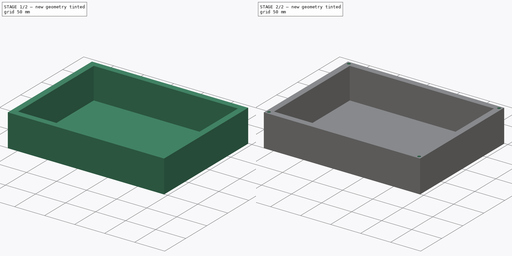
[diagram: build sequence overview — one tinted view per stage of 2, left to right]
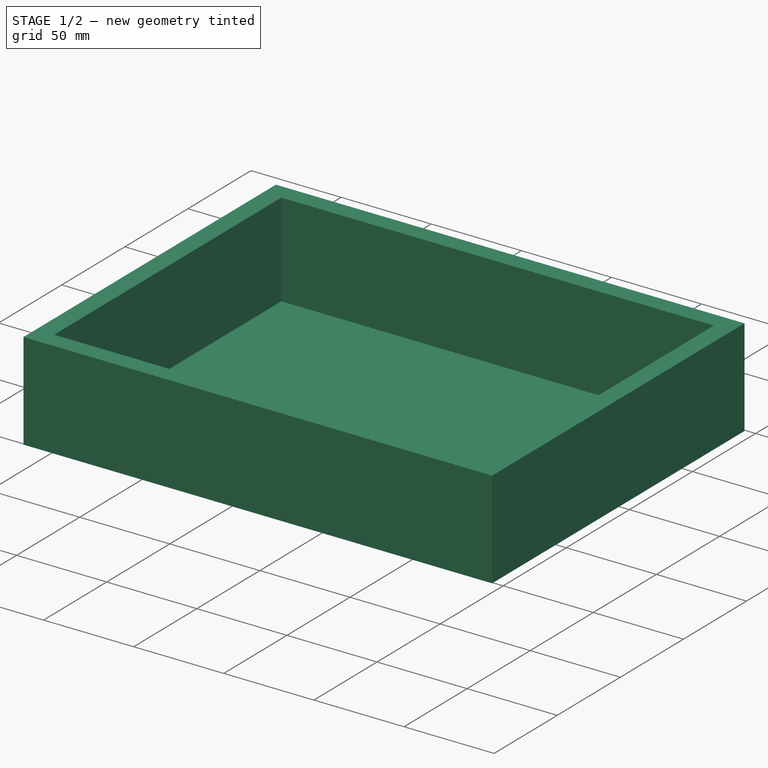
[diagram: stage 1 of 2 — iso view after this stage's code; geometry added in this stage tinted green]
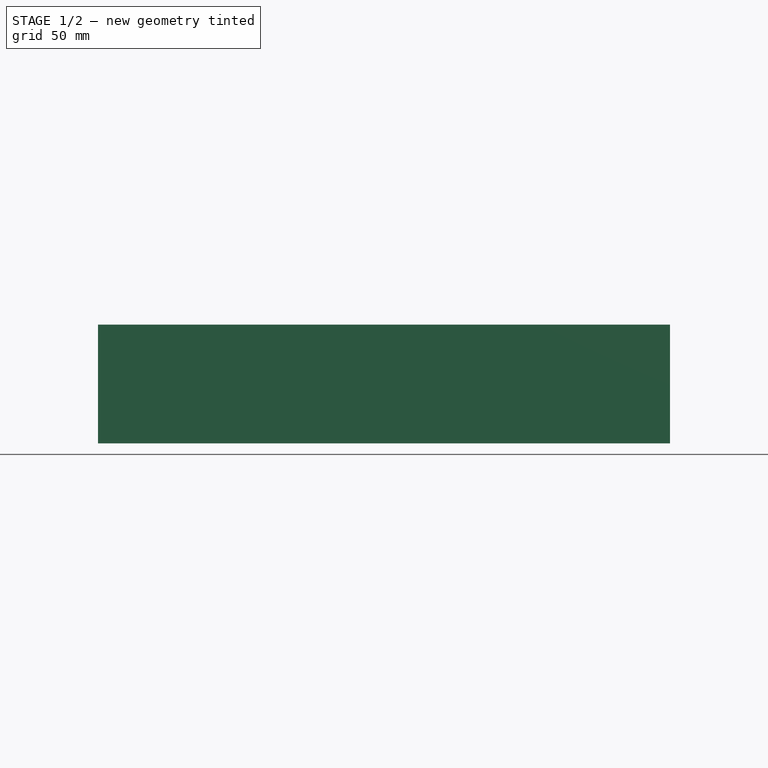
[diagram: stage 1 of 2 — front view after this stage's code; geometry added in this stage tinted green]
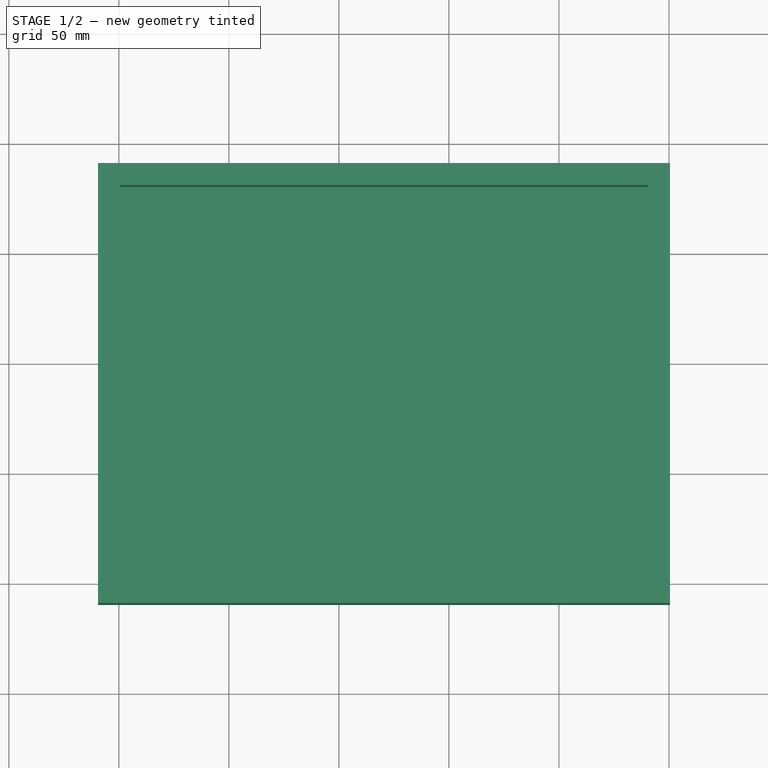
[diagram: stage 1 of 2 — top view after this stage's code; geometry added in this stage tinted green]
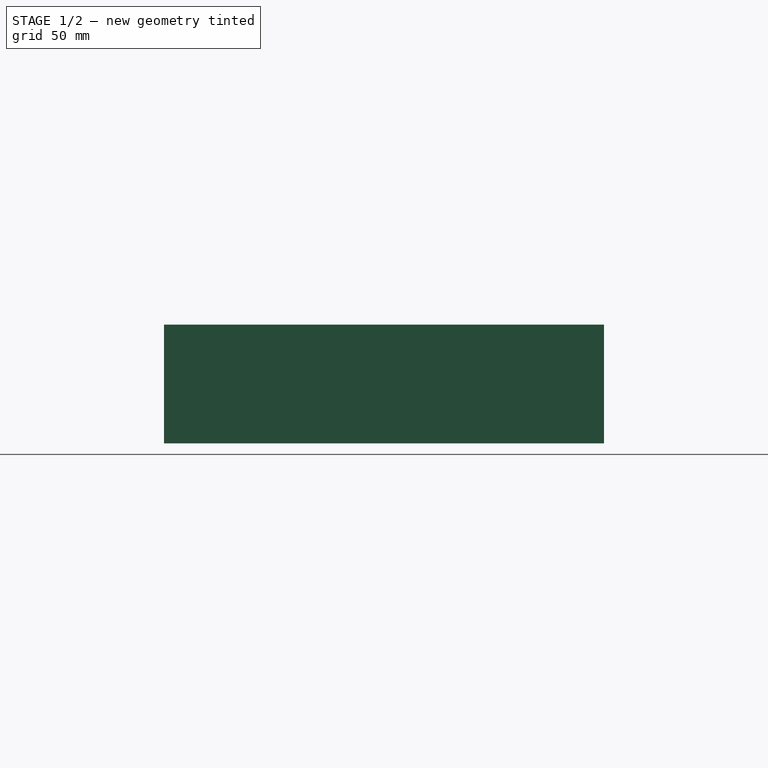
[diagram: stage 1 of 2 — right view after this stage's code; geometry added in this stage tinted green]
FCSTD DOCUMENT  (FreeCAD 1.0R39285 (Git))
Label: Main Box
License: All rights reserved
LicenseURL: https://en.wikipedia.org/wiki/All_rights_reserved
objects: Sketcher::SketchObject×3, PartDesign::Pad×2, PartDesign::Pocket×1, PartDesign::Body×1
note: 16 computed .brp shape members not serialized (recipe doc carries the construction recipe); baked Part::Feature solids carry a one-line shape summary decoded from their .brp

FEATURE [Sketcher::SketchObject] Sketch
  ArcFitTolerance = 1e-06
  AttachmentSupport = -> [XY_Plane]
  FullyConstrained = true
  MakeInternals = false
  MapMode = 5
  sketch-geometry (12):
    g0: LineSegment [constr] StartX=0 StartY=0 StartZ=0 EndX=240 EndY=0 EndZ=0
    g1: LineSegment [constr] StartX=240 StartY=0 StartZ=0 EndX=240 EndY=180 EndZ=0
    g2: LineSegment [constr] StartX=240 StartY=180 StartZ=0 EndX=0 EndY=180 EndZ=0
    g3: LineSegment [constr] StartX=0 StartY=180 StartZ=0 EndX=0 EndY=0 EndZ=0
    g4: LineSegment StartX=0.5 StartY=180.5 StartZ=0 EndX=0.5 EndY=0.5 EndZ=0
    g5: LineSegment StartX=0.5 StartY=0.5 StartZ=0 EndX=240.5 EndY=0.5 EndZ=0
    g6: LineSegment StartX=240.5 StartY=0.5 StartZ=0 EndX=240.5 EndY=180.5 EndZ=0
    g7: LineSegment StartX=240.5 StartY=180.5 StartZ=0 EndX=0.5 EndY=180.5 EndZ=0
    g8: LineSegment StartX=-9.5 StartY=190.5 StartZ=0 EndX=-9.5 EndY=-9.5 EndZ=0
    g9: LineSegment StartX=-9.5 StartY=-9.5 StartZ=0 EndX=250.5 EndY=-9.5 EndZ=0
    g10: LineSegment StartX=250.5 StartY=-9.5 StartZ=0 EndX=250.5 EndY=190.5 EndZ=0
    g11: LineSegment StartX=250.5 StartY=190.5 StartZ=0 EndX=-9.5 EndY=190.5 EndZ=0
  constraints (35):
    c: Coincident(g0,g1)
    c: Coincident(g1,g2)
    c: Coincident(g2,g3)
    c: Coincident(g3,g0)
    c: Horizontal(g0)
    c: Horizontal(g2)
    c: Vertical(g1)
    c: Vertical(g3)
    c: Distance(g1,g3) = 240
    c: Distance(g0,g2) = 180
    c: Coincident(g0,g-1)
    c: Coincident(g4,g5)
    c: Coincident(g5,g6)
    c: Coincident(g6,g7)
    c: Coincident(g7,g4)
    c: Vertical(g4)
    c: Vertical(g6)
    c: Horizontal(g5)
    c: Horizontal(g7)
    c: Distance(g3,g4) = 0.5
    c: Coincident(g8,g9)
    c: Coincident(g9,g10)
    c: Coincident(g10,g11)
    c: Coincident(g11,g8)
    c: Vertical(g8)
    c: Vertical(g10)
    c: Horizontal(g9)
    c: Horizontal(g11)
    c: Distance(g11,g7) = 10
    c: Distance(g7,g2) = 0.5
    c: Distance(g6,g1) = 0.5
    c: Distance(g5,g0) = 0.5
    c: Distance(g10,g6) = 10
    c: Distance(g9,g5) = 10
    c: Distance(g8,g4) = 10
FEATURE [PartDesign::Pad] Pad
  Direction = (0,0,1)
  Length = 52
  Length2 = 10
  Profile = -> Sketch
  ReferenceAxis = -> Sketch [N_Axis]
  Refine = true
  Suppressed = false
  Type = 0
FEATURE [Sketcher::SketchObject] Sketch001
  ArcFitTolerance = 1e-06
  AttachmentSupport = -> [XY_Plane]
  ExternalGeometry = -> [Pad]
  FullyConstrained = true
  MakeInternals = false
  MapMode = 5
  sketch-geometry (4):
    g0: LineSegment StartX=-9.5 StartY=-9.5 StartZ=0 EndX=250.5 EndY=-9.5 EndZ=0
    g1: LineSegment StartX=250.5 StartY=-9.5 StartZ=0 EndX=250.5 EndY=190.5 EndZ=0
    g2: LineSegment StartX=250.5 StartY=190.5 StartZ=0 EndX=-9.5 EndY=190.5 EndZ=0
    g3: LineSegment StartX=-9.5 StartY=190.5 StartZ=0 EndX=-9.5 EndY=-9.5 EndZ=0
  constraints (10):
    c: Coincident(g0,g1)
    c: Coincident(g1,g2)
    c: Coincident(g2,g3)
    c: Coincident(g3,g0)
    c: Horizontal(g0)
    c: Horizontal(g2)
    c: Vertical(g1)
    c: Vertical(g3)
    c: Coincident(g0,g-5)
    c: Coincident(g1,g-6)
FEATURE [PartDesign::Pad] Pad001
  BaseFeature = -> Pad
  Direction = (0,0,1)
  Length = 2
  Length2 = 10
  Profile = -> Sketch001
  ReferenceAxis = -> Sketch001 [N_Axis]
  Refine = true
  Reversed = true
  Suppressed = false
  Type = 0
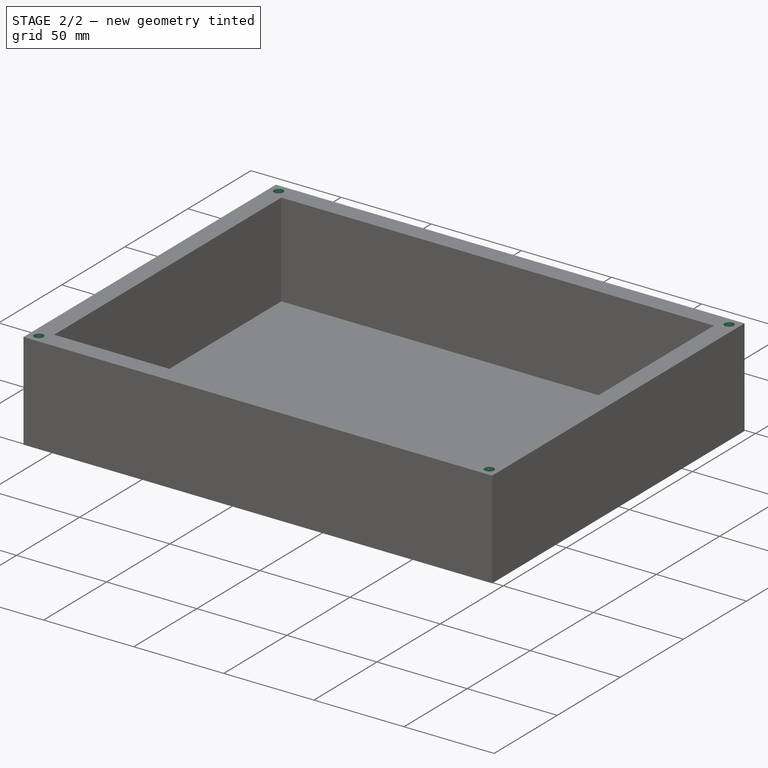
[diagram: stage 2 of 2 — iso view after this stage's code; geometry added in this stage tinted green]
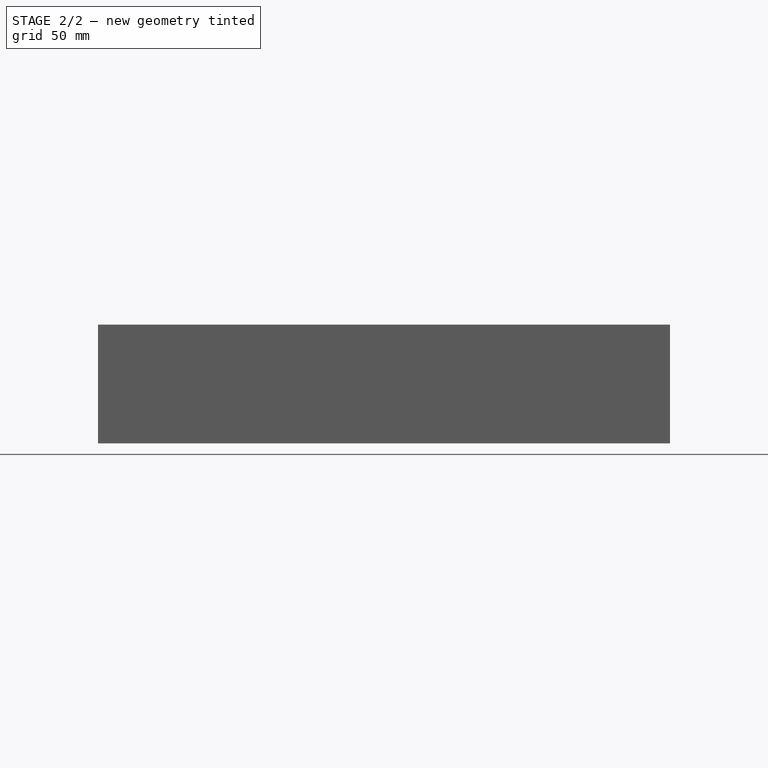
[diagram: stage 2 of 2 — front view after this stage's code; geometry added in this stage tinted green]
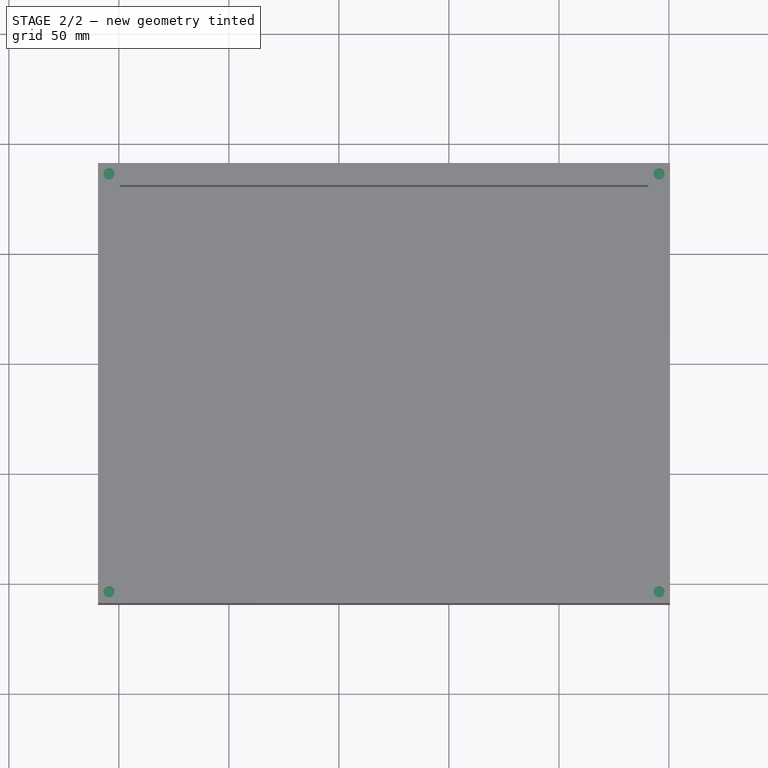
[diagram: stage 2 of 2 — top view after this stage's code; geometry added in this stage tinted green]
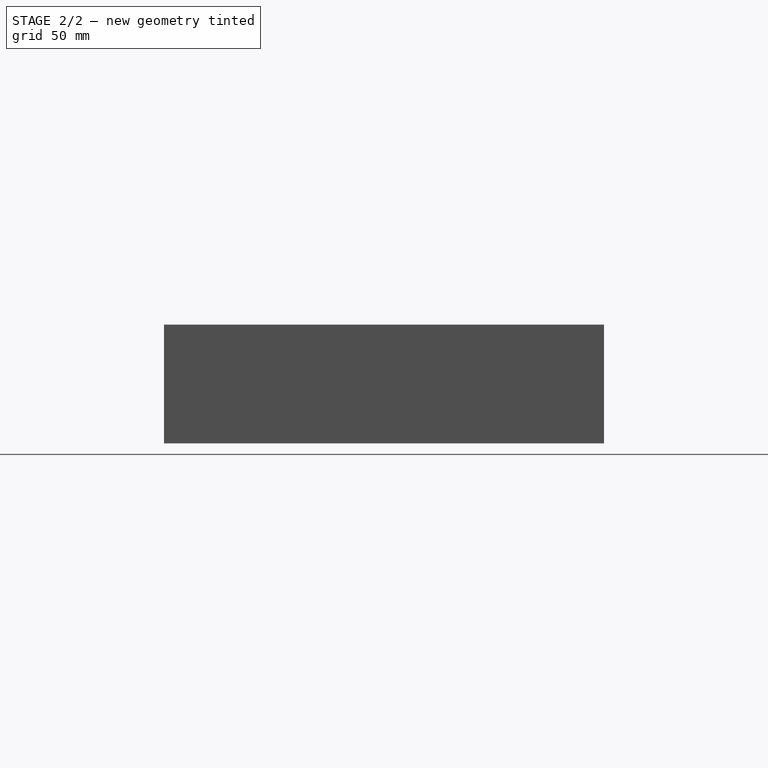
[diagram: stage 2 of 2 — right view after this stage's code; geometry added in this stage tinted green]
FEATURE [Sketcher::SketchObject] Sketch002
  ArcFitTolerance = 1e-06
  AttachmentSupport = -> [Pad001]
  ExternalGeometry = -> [Pad001]
  FullyConstrained = true
  MakeInternals = false
  MapMode = 5
  Placement = pos=(0,0,52) rot=(0,0,1;0rad)
  sketch-geometry (12):
    g0: Circle CenterX=245.5 CenterY=185.5 CenterZ=0 NormalX=0 NormalY=0 NormalZ=1 AngleXU=0 Radius=2.5
    g1: LineSegment [constr] StartX=245.5 StartY=185.5 StartZ=0 EndX=245.5 EndY=190.5 EndZ=0
    g2: LineSegment [constr] StartX=245.5 StartY=185.5 StartZ=0 EndX=250.5 EndY=185.5 EndZ=0
    g3: Circle CenterX=245.5 CenterY=-4.5 CenterZ=0 NormalX=0 NormalY=0 NormalZ=1 AngleXU=0 Radius=2.5
    g4: LineSegment [constr] StartX=245.5 StartY=-4.5 StartZ=0 EndX=250.5 EndY=-4.5 EndZ=0
    g5: LineSegment [constr] StartX=245.5 StartY=-4.5 StartZ=0 EndX=245.5 EndY=-9.5 EndZ=0
    g6: Circle CenterX=-4.5 CenterY=-4.5 CenterZ=0 NormalX=0 NormalY=0 NormalZ=1 AngleXU=0 Radius=2.5
    g7: LineSegment [constr] StartX=-4.5 StartY=-4.5 StartZ=0 EndX=-4.5 EndY=-9.5 EndZ=0
    g8: LineSegment [constr] StartX=-4.5 StartY=-4.5 StartZ=0 EndX=-9.5 EndY=-4.5 EndZ=0
    g9: Circle CenterX=-4.5 CenterY=185.5 CenterZ=0 NormalX=0 NormalY=0 NormalZ=1 AngleXU=0 Radius=2.5
    g10: LineSegment [constr] StartX=-4.5 StartY=185.5 StartZ=0 EndX=-4.5 EndY=190.5 EndZ=0
    g11: LineSegment [constr] StartX=-4.5 StartY=185.5 StartZ=0 EndX=-9.5 EndY=185.5 EndZ=0
  constraints (36):
    c: Diameter(g0) = 5
    c: Coincident(g1,g0)
    c: PointOnObject(g1,g-3)
    c: Vertical(g1)
    c: Coincident(g2,g0)
    c: PointOnObject(g2,g-4)
    c: Horizontal(g2)
    c: Equal(g1,g2)
    c: DistanceY(g1,g1) = 5
    c: Diameter(g3) = 5
    c: Coincident(g4,g3)
    c: PointOnObject(g4,g-4)
    c: Horizontal(g4)
    c: Coincident(g5,g3)
    c: PointOnObject(g5,g-5)
    c: Vertical(g5)
    c: Equal(g5,g4)
    c: DistanceY(g5,g5) = 5
    c: Diameter(g6) = 5
    c: Coincident(g7,g6)
    c: PointOnObject(g7,g-5)
    c: Vertical(g7)
    c: Coincident(g8,g6)
    c: PointOnObject(g8,g-6)
    c: Horizontal(g8)
    c: Equal(g7,g8)
    c: DistanceY(g7,g7) = 5
    c: Diameter(g9) = 5
    c: Coincident(g10,g9)
    c: PointOnObject(g10,g-3)
    c: Vertical(g10)
    c: Coincident(g11,g9)
    c: PointOnObject(g11,g-6)
    c: Horizontal(g11)
    c: Equal(g10,g11)
    c: DistanceY(g10,g10) = 5
FEATURE [PartDesign::Pocket] Pocket
  BaseFeature = -> Pad001
  Direction = (0,0,-1)
  Length = 10
  Length2 = 5
  Profile = -> Sketch002
  ReferenceAxis = -> Sketch002 [N_Axis]
  Refine = true
  Suppressed = false
  Type = 0
FEATURE [PartDesign::Body] Body
  AllowCompound = false
  Group = -> [Sketch,Pad,Sketch001,Pad001,Sketch002,Pocket]
  Origin = -> Origin
  Tip = -> Pocket
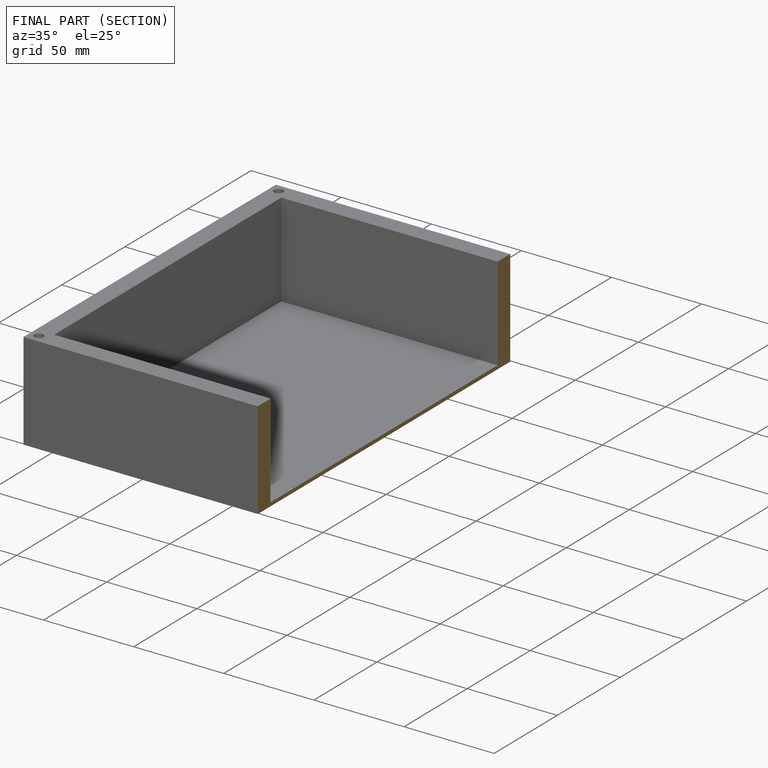
[diagram: finished part — half-section view (interior)]
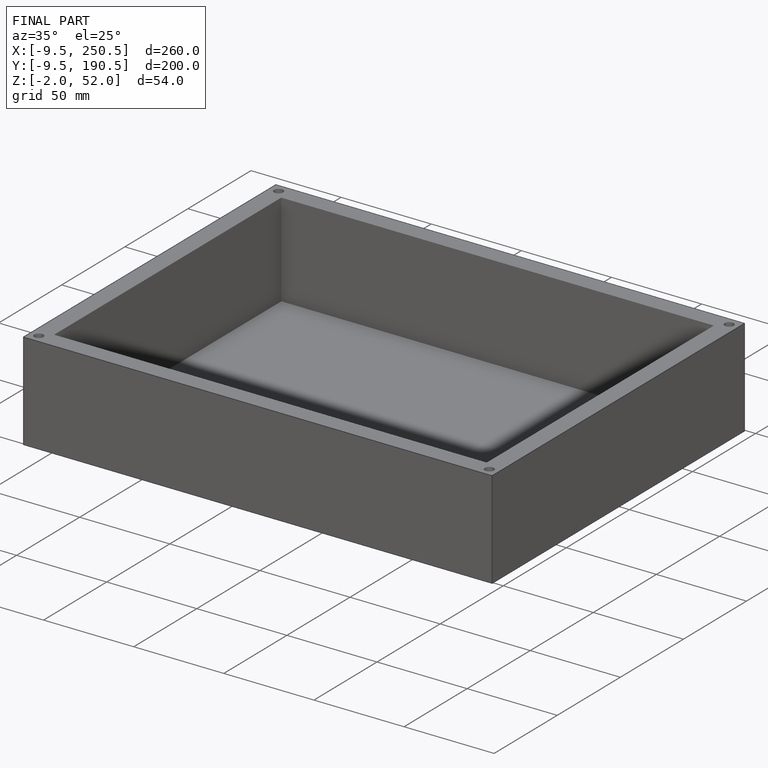
[diagram: finished part — iso view with bounding-box wireframe]
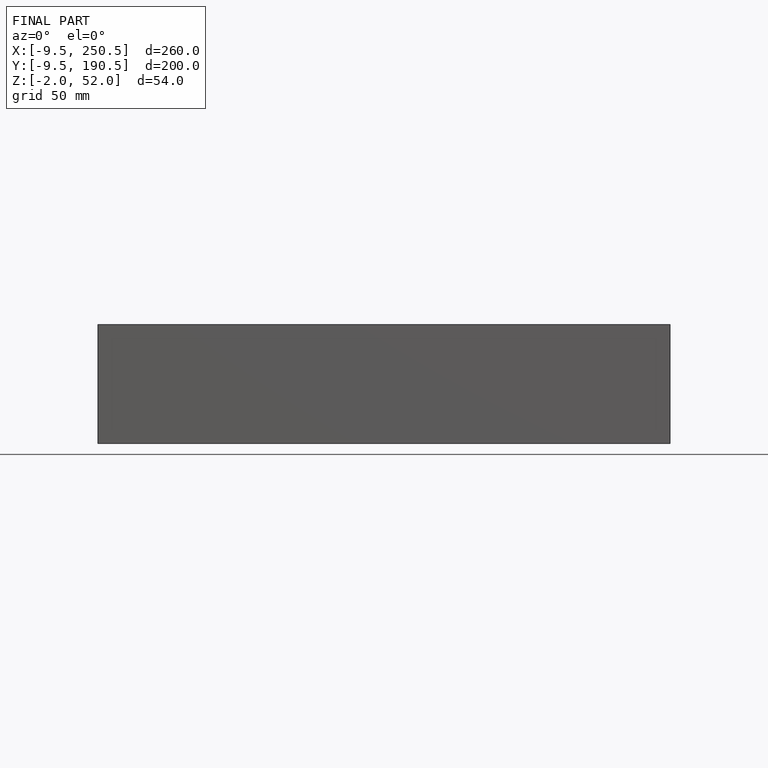
[diagram: finished part — front view with bounding-box wireframe]
